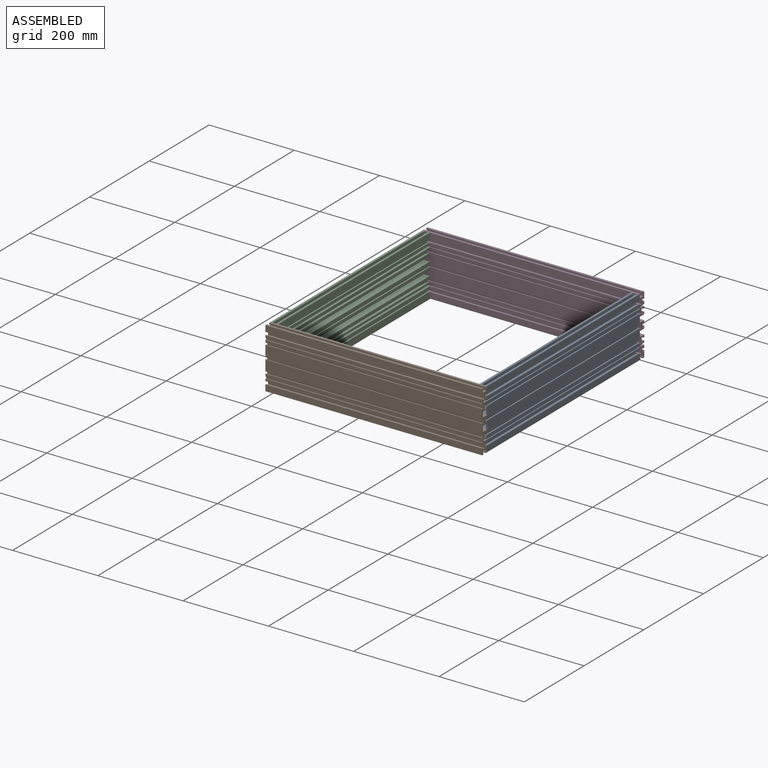
[diagram: assembled view]
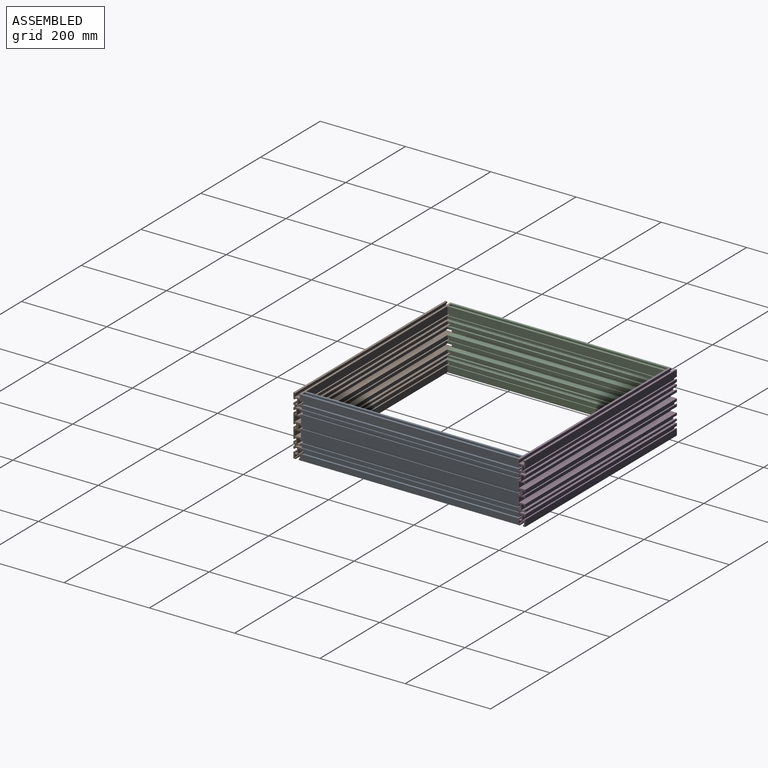
[diagram: assembled view, second angle]
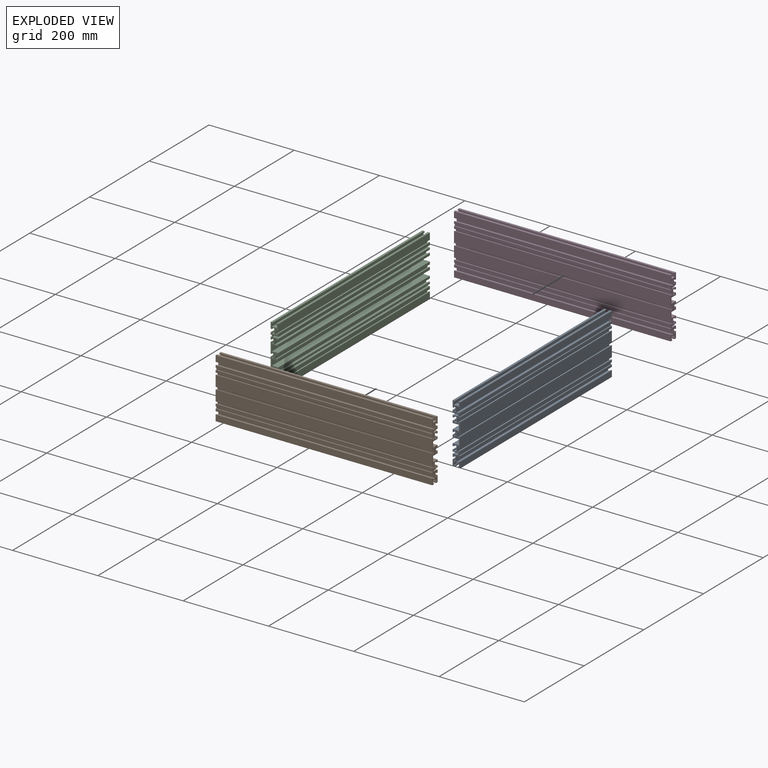
[diagram: exploded view]
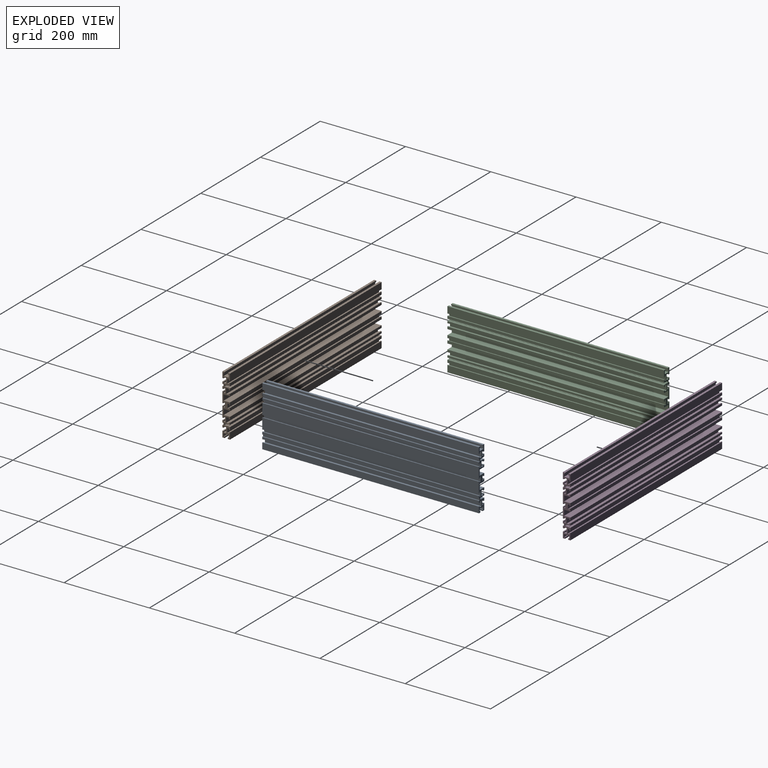
[diagram: exploded view, second angle]
ASSEMBLY  parts=4 mates=3
PART A: 134 faces, bbox 140x508x17.8 mm
  f0: cylinder r=2.16mm len=508mm, axis (0,-1,0), area 4567.6mm2, adj f1,f131,f132,f133
  f1: plane 508x4.57mm, normal (-1,0,0), area 2322.6mm2, adj f0,f2,f132,f133
  f2: plane 508x0.53mm, normal (0,0,-1), area 269.4mm2, adj f1,f3,f132,f133
  f3: plane 508x5.19mm, normal (-1,0,0), area 2637.8mm2, adj f2,f4,f132,f133
  f4: plane 508x4.45mm, normal (0,0,-1), area 2258.1mm2, adj f3,f5,f132,f133
  f5: plane 508x2.79mm, normal (1,0,0), area 1419.4mm2, adj f4,f6,f132,f133
  f6: plane 508x2.54mm, normal (0,0,1), area 1290.3mm2, adj f5,f7,f132,f133
  f7: plane 508x6.1mm, normal (1,0,0), area 3096.8mm2, adj f6,f8,f132,f133
  f8: plane 508x12.19mm, normal (0,0,-1), area 6193.5mm2, adj f7,f9,f132,f133
  f9: plane 508x6.1mm, normal (-1,0,0), area 3096.8mm2, adj f8,f10,f132,f133
  f10: plane 508x2.54mm, normal (0,0,1), area 1290.3mm2, adj f9,f11,f132,f133
  f11: plane 508x2.79mm, normal (-1,0,0), area 1419.4mm2, adj f10,f12,f132,f133
  f12: plane 508x5.33mm, normal (0,0,-1), area 2709.7mm2, adj f11,f13,f132,f133
  f13: plane 508x14.73mm, normal (1,0,0), area 7483.9mm2, adj f12,f14,f132,f133
  f14: plane 508x12.95mm, normal (0,0,-1), area 6580.6mm2, adj f13,f15,f132,f133
  f15: plane 508x14.73mm, normal (-1,0,0), area 7483.9mm2, adj f14,f16,f132,f133
  f16: plane 508x5.97mm, normal (0,0,-1), area 3032.3mm2, adj f15,f17,f132,f133
  f17: plane 508x2.03mm, normal (1,0,0), area 1032.3mm2, adj f16,f18,f132,f133
  f18: plane 508x2.16mm, normal (0,0,1), area 1096.8mm2, adj f17,f19,f132,f133
  f19: plane 508x3.81mm, normal (1,0,0), area 1935.5mm2, adj f18,f20,f132,f133
  f20: plane 508x9.91mm, normal (0,0,-1), area 5032.2mm2, adj f19,f21,f132,f133
  f21: plane 508x3.81mm, normal (-1,0,0), area 1935.5mm2, adj f20,f22,f132,f133
  f22: plane 508x2.16mm, normal (0,0,1), area 1096.8mm2, adj f21,f23,f132,f133
  f23: plane 508x2.03mm, normal (-1,0,0), area 1032.3mm2, adj f22,f24,f132,f133
  f24: plane 508x5.97mm, normal (0,0,-1), area 3032.3mm2, adj f23,f25,f132,f133
  f25: plane 508x14.73mm, normal (1,0,0), area 7483.9mm2, adj f24,f26,f132,f133
  f26: plane 508x12.95mm, normal (0,0,-1), area 6580.6mm2, adj f25,f27,f132,f133
  f27: plane 508x14.73mm, normal (-1,0,0), area 7483.9mm2, adj f26,f28,f132,f133
  f28: plane 508x5.33mm, normal (0,0,-1), area 2709.7mm2, adj f27,f29,f132,f133
  f29: plane 508x2.79mm, normal (1,0,0), area 1419.4mm2, adj f28,f30,f132,f133
  f30: plane 508x2.54mm, normal (0,0,1), area 1290.3mm2, adj f29,f31,f132,f133
  f31: plane 508x6.1mm, normal (1,0,0), area 3096.8mm2, adj f30,f32,f132,f133
  f32: plane 508x12.19mm, normal (0,0,-1), area 6193.5mm2, adj f31,f33,f132,f133
  f33: plane 508x6.1mm, normal (-1,0,0), area 3096.8mm2, adj f32,f34,f132,f133
  f34: plane 508x2.54mm, normal (0,0,1), area 1290.3mm2, adj f33,f35,f132,f133
  f35: plane 508x2.79mm, normal (-1,0,0), area 1419.4mm2, adj f34,f36,f132,f133
  f36: plane 508x4.45mm, normal (0,0,-1), area 2258.1mm2, adj f35,f37,f132,f133
  f37: plane 508x5.19mm, normal (1,0,0), area 2637.8mm2, adj f36,f38,f132,f133
  f38: plane 508x0.53mm, normal (0,0,-1), area 269.4mm2, adj f37,f39,f132,f133
  f39: plane 508x4.57mm, normal (1,0,0), area 2322.6mm2, adj f38,f40,f132,f133
  f40: cylinder r=2.16mm len=508mm, axis (0,-1,0), area 4567.6mm2, adj f39,f41,f132,f133
  f41: plane 508x4.57mm, normal (-1,0,0), area 2322.6mm2, adj f40,f42,f132,f133
  f42: plane 508x0.53mm, normal (0,0,-1), area 269.4mm2, adj f41,f43,f132,f133
  f43: plane 508x5.19mm, normal (-1,0,0), area 2637.8mm2, adj f42,f44,f132,f133
  f44: plane 508x6.22mm, normal (0,0,-1), area 3161.3mm2, adj f43,f45,f132,f133
  f45: plane 508x2.54mm, normal (1,0,0), area 1290.3mm2, adj f44,f46,f132,f133
  f46: plane 508x2.52mm, normal (0,0,1), area 1280.1mm2, adj f45,f47,f132,f133
  f47: plane 508x3.81mm, normal (1,0,0), area 1935.5mm2, adj f46,f48,f132,f133
  f48: plane 508x10.12mm, normal (0,0,-1), area 5140.7mm2, adj f47,f49,f132,f133
  f49: plane 508x3.81mm, normal (-1,0,0), area 1935.5mm2, adj f48,f50,f132,f133
  f50: plane 508x2.52mm, normal (0,0,1), area 1280.1mm2, adj f49,f51,f132,f133
  f51: plane 508x2.54mm, normal (-1,0,0), area 1290.3mm2, adj f50,f52,f132,f133
  f52: plane 508x15.24mm, normal (0,0,-1), area 7741.9mm2, adj f51,f53,f132,f133
  f53: plane 508x5.08mm, normal (1,0,0), area 2580.6mm2, adj f52,f54,f132,f133
  f54: plane 508x3.05mm, normal (0,0,1), area 1548.4mm2, adj f53,f55,f132,f133
  f55: plane 508x2.29mm, normal (-1,0,0), area 1161.3mm2, adj f54,f56,f132,f133
  f56: plane 508x6.1mm, normal (0,0,1), area 3096.8mm2, adj f55,f57,f132,f133
  f57: plane 508x12.19mm, normal (1,0,0), area 6193.5mm2, adj f56,f58,f132,f133
  f58: plane 508x6.1mm, normal (0,0,-1), area 3096.8mm2, adj f57,f59,f132,f133
  f59: plane 508x2.29mm, normal (-1,0,0), area 1161.3mm2, adj f58,f60,f132,f133
  f60: plane 508x3.05mm, normal (0,0,-1), area 1548.4mm2, adj f59,f61,f132,f133
  f61: plane 508x5.08mm, normal (1,0,0), area 2580.6mm2, adj f60,f62,f132,f133
  f62: plane 508x14.22mm, normal (0,0,1), area 7225.8mm2, adj f61,f63,f132,f133
  f63: plane 508x2.79mm, normal (-1,0,0), area 1419.4mm2, adj f62,f64,f132,f133
  f64: plane 508x2.54mm, normal (0,0,-1), area 1290.3mm2, adj f63,f65,f132,f133
  f65: plane 508x6.1mm, normal (-1,0,0), area 3096.8mm2, adj f64,f66,f132,f133
  f66: plane 508x12.19mm, normal (0,0,1), area 6193.5mm2, adj f65,f67,f132,f133
  f67: plane 508x6.1mm, normal (1,0,0), area 3096.8mm2, adj f66,f68,f132,f133
  f68: plane 508x2.54mm, normal (0,0,-1), area 1290.3mm2, adj f67,f69,f132,f133
  f69: plane 508x2.79mm, normal (1,0,0), area 1419.4mm2, adj f68,f70,f132,f133
  f70: plane 508x5.08mm, normal (0,0,1), area 2580.6mm2, adj f69,f71,f132,f133
  f71: plane 508x2.54mm, normal (-1,0,0), area 1290.3mm2, adj f70,f72,f132,f133
  f72: plane 508x5.08mm, normal (0,0,1), area 2580.6mm2, adj f71,f73,f132,f133
  f73: plane 508x2.54mm, normal (1,0,0), area 1290.3mm2, adj f72,f74,f132,f133
  f74: plane 508x5.33mm, normal (0,0,1), area 2709.7mm2, adj f73,f75,f132,f133
  f75: plane 508x2.54mm, normal (-1,0,0), area 1290.3mm2, adj f74,f76,f132,f133
  f76: plane 508x2.52mm, normal (0,0,-1), area 1280.1mm2, adj f75,f77,f132,f133
  f77: plane 508x3.81mm, normal (-1,0,0), area 1935.5mm2, adj f76,f78,f132,f133
  f78: plane 508x10.12mm, normal (0,0,1), area 5140.7mm2, adj f77,f79,f132,f133
  f79: plane 508x3.81mm, normal (1,0,0), area 1935.5mm2, adj f78,f80,f132,f133
  f80: plane 508x2.52mm, normal (0,0,-1), area 1280.1mm2, adj f79,f81,f132,f133
  f81: plane 508x2.54mm, normal (1,0,0), area 1290.3mm2, adj f80,f82,f132,f133
  f82: plane 508x25.27mm, normal (0,0,1), area 12838.7mm2, adj f81,f83,f132,f133
  f83: plane 508x2.03mm, normal (-1,0,0), area 1032.3mm2, adj f82,f84,f132,f133
  f84: plane 508x2.16mm, normal (0,0,-1), area 1096.8mm2, adj f83,f85,f132,f133
  f85: plane 508x3.81mm, normal (-1,0,0), area 1935.5mm2, adj f84,f86,f132,f133
  f86: plane 508x9.91mm, normal (0,0,1), area 5032.2mm2, adj f85,f87,f132,f133
  f87: plane 508x3.81mm, normal (1,0,0), area 1935.5mm2, adj f86,f88,f132,f133
  f88: plane 508x2.16mm, normal (0,0,-1), area 1096.8mm2, adj f87,f89,f132,f133
  f89: plane 508x2.03mm, normal (1,0,0), area 1032.3mm2, adj f88,f90,f132,f133
  f90: plane 508x25.27mm, normal (0,0,1), area 12838.7mm2, adj f89,f91,f132,f133
  f91: plane 508x2.54mm, normal (-1,0,0), area 1290.3mm2, adj f90,f92,f132,f133
  f92: plane 508x2.52mm, normal (0,0,-1), area 1280.1mm2, adj f91,f93,f132,f133
  f93: plane 508x3.81mm, normal (-1,0,0), area 1935.5mm2, adj f92,f94,f132,f133
  f94: plane 508x10.12mm, normal (0,0,1), area 5140.7mm2, adj f93,f95,f132,f133
  f95: plane 508x3.81mm, normal (1,0,0), area 1935.5mm2, adj f94,f96,f132,f133
  f96: plane 508x2.52mm, normal (0,0,-1), area 1280.1mm2, adj f95,f97,f132,f133
  f97: plane 508x2.54mm, normal (1,0,0), area 1290.3mm2, adj f96,f98,f132,f133
  f98: plane 508x5.33mm, normal (0,0,1), area 2709.7mm2, adj f97,f99,f132,f133
  f99: plane 508x2.54mm, normal (-1,0,0), area 1290.3mm2, adj f98,f100,f132,f133
  f100: plane 508x5.08mm, normal (0,0,1), area 2580.6mm2, adj f99,f101,f132,f133
  f101: plane 508x2.54mm, normal (1,0,0), area 1290.3mm2, adj f100,f102,f132,f133
  f102: plane 508x5.08mm, normal (0,0,1), area 2580.6mm2, adj f101,f103,f132,f133
  f103: plane 508x2.79mm, normal (-1,0,0), area 1419.4mm2, adj f102,f104,f132,f133
  f104: plane 508x2.54mm, normal (0,0,-1), area 1290.3mm2, adj f103,f105,f132,f133
  f105: plane 508x6.1mm, normal (-1,0,0), area 3096.8mm2, adj f104,f106,f132,f133
  f106: plane 508x12.19mm, normal (0,0,1), area 6193.5mm2, adj f105,f107,f132,f133
  f107: plane 508x6.1mm, normal (1,0,0), area 3096.8mm2, adj f106,f108,f132,f133
  f108: plane 508x2.54mm, normal (0,0,-1), area 1290.3mm2, adj f107,f109,f132,f133
  f109: plane 508x2.79mm, normal (1,0,0), area 1419.4mm2, adj f108,f110,f132,f133
  f110: plane 508x14.22mm, normal (0,0,1), area 7225.8mm2, adj f109,f111,f132,f133
  f111: plane 508x5.08mm, normal (-1,0,0), area 2580.6mm2, adj f110,f112,f132,f133
  f112: plane 508x3.05mm, normal (0,0,-1), area 1548.4mm2, adj f111,f113,f132,f133
  f113: plane 508x2.29mm, normal (1,0,0), area 1161.3mm2, adj f112,f114,f132,f133
  f114: plane 508x6.1mm, normal (0,0,-1), area 3096.8mm2, adj f113,f115,f132,f133
  f115: plane 508x12.19mm, normal (-1,0,0), area 6193.5mm2, adj f114,f116,f132,f133
  f116: plane 508x6.1mm, normal (0,0,1), area 3096.8mm2, adj f115,f117,f132,f133
  f117: plane 508x2.29mm, normal (1,0,0), area 1161.3mm2, adj f116,f118,f132,f133
  f118: plane 508x3.05mm, normal (0,0,1), area 1548.4mm2, adj f117,f119,f132,f133
  f119: plane 508x5.08mm, normal (-1,0,0), area 2580.6mm2, adj f118,f120,f132,f133
  f120: plane 508x15.24mm, normal (0,0,-1), area 7741.9mm2, adj f119,f121,f132,f133
  f121: plane 508x2.54mm, normal (1,0,0), area 1290.3mm2, adj f120,f122,f132,f133
  f122: plane 508x2.52mm, normal (0,0,1), area 1280.1mm2, adj f121,f123,f132,f133
  f123: plane 508x3.81mm, normal (1,0,0), area 1935.5mm2, adj f122,f124,f132,f133
  f124: plane 508x10.12mm, normal (0,0,-1), area 5140.7mm2, adj f123,f125,f132,f133
  f125: plane 508x3.81mm, normal (-1,0,0), area 1935.5mm2, adj f124,f126,f132,f133
  f126: plane 508x2.52mm, normal (0,0,1), area 1280.1mm2, adj f125,f127,f132,f133
  f127: plane 508x2.54mm, normal (-1,0,0), area 1290.3mm2, adj f126,f128,f132,f133
  f128: plane 508x6.22mm, normal (0,0,-1), area 3161.3mm2, adj f127,f129,f132,f133
  f129: plane 508x5.19mm, normal (1,0,0), area 2637.8mm2, adj f128,f130,f132,f133
  f130: plane 508x0.53mm, normal (0,0,-1), area 269.4mm2, adj f129,f131,f132,f133
  f131: plane 508x4.57mm, normal (1,0,0), area 2322.6mm2, adj f0,f130,f132,f133
  f132: plane 139.95x17.78mm, normal (0,1,0), area 1097.1mm2, adj f0,f1,f2,f3,f4,f5,f6,f7
  f133: plane 139.95x17.78mm, normal (0,-1,0), area 1097.1mm2, adj f0,f1,f2,f3,f4,f5,f6,f7
PART B: same geometry as A
PART C: same geometry as A
PART D: same geometry as A
PLACE A rot(axis=(0,1,0),90deg) t=(295.92,-131.22,268.2)mm
PLACE B rot(axis=(0.58,-0.58,0.58),120deg) t=(304.81,-140.11,268.2)mm
PLACE C rot(axis=(0,-1,0),90deg) t=(-194.3,-131.22,268.2)mm
PLACE D rot(axis=(0.58,-0.58,0.58),120deg) t=(304.81,385.67,268.2)mm
MATE fastened A.f132 <-> D.f62  axis (0,1,0) through (304.81,376.78,338.17)mm
MATE fastened B.f52 <-> A.f133  axis (0,1,0) through (304.81,-131.22,338.17)mm
MATE fastened B.f52 <-> C.f133  axis (0,1,0) through (-203.19,-131.22,338.17)mm
